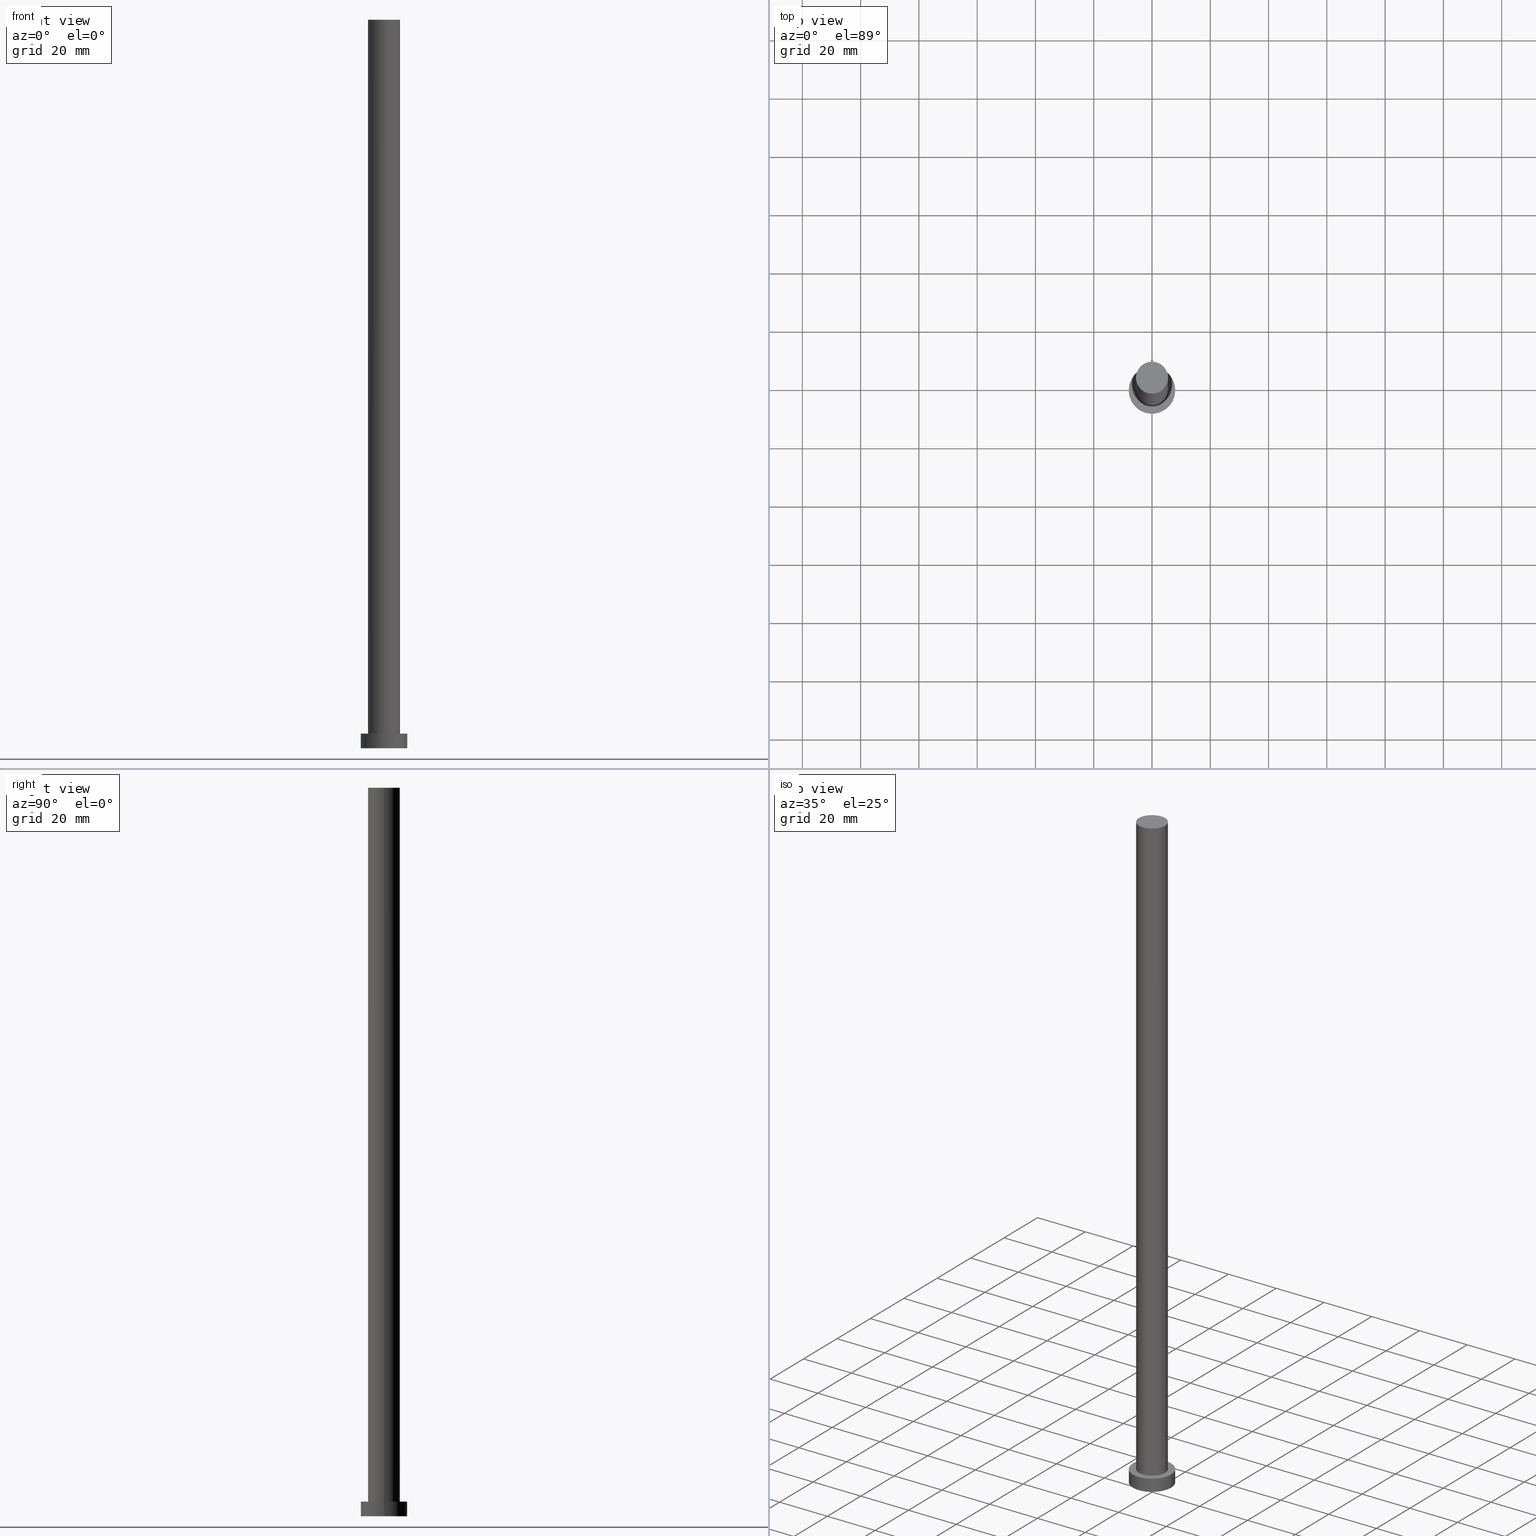
[diagram: canonical four-view strip — front | top / right | iso, engineering-drawing reading convention]
A machine part, canonical four-view strip (front | top / right | iso — engineering-drawing reading convention). The complete STEP part file that produces these views, byte-faithful:
ISO-10303-21;
HEADER;
FILE_DESCRIPTION (( 'STEP AP203' ),
    '1' );
FILE_NAME ('1687.STEP',
    '2023-02-12T10:57:11',
    ( '' ),
    ( '' ),
    'SwSTEP 2.0',
    'SolidWorks 2019',
    '' );
FILE_SCHEMA (( 'CONFIG_CONTROL_DESIGN' ));
ENDSEC;

DATA;
#1 = CARTESIAN_POINT ( 'NONE',  ( -5.500000000000000000, 0.000000000000000000, 250.0000000000000000 ) ) ;
#2 = EDGE_CURVE ( 'NONE', #222, #147, #193, .T. ) ;
#3 = ORIENTED_EDGE ( 'NONE', *, *, #88, .T. ) ;
#4 = MECHANICAL_CONTEXT ( 'NONE', #162, 'mechanical' ) ;
#5 = FACE_OUTER_BOUND ( 'NONE', #31, .T. ) ;
#6 = LOCAL_TIME ( 11, 57, 11.00000000000000000, #200 ) ;
#7 = CARTESIAN_POINT ( 'NONE',  ( -8.000000000000000000, 0.000000000000000000, 5.000000000000000000 ) ) ;
#8 = VECTOR ( 'NONE', #51, 1000.000000000000000 ) ;
#9 = CARTESIAN_POINT ( 'NONE',  ( 5.500000000000000000, 6.735557395310442023E-16, 250.0000000000000000 ) ) ;
#10 = DIRECTION ( 'NONE',  ( 0.000000000000000000, 0.000000000000000000, 1.000000000000000000 ) ) ;
#11 = AXIS2_PLACEMENT_3D ( 'NONE', #210, #114, #46 ) ;
#12 = PERSON_AND_ORGANIZATION_ROLE ( 'classification_officer' ) ;
#13 = DIRECTION ( 'NONE',  ( 1.000000000000000000, 0.000000000000000000, 0.000000000000000000 ) ) ;
#14 = ORIENTED_EDGE ( 'NONE', *, *, #88, .F. ) ;
#15 = SECURITY_CLASSIFICATION_LEVEL ( 'unclassified' ) ;
#16 = DIRECTION ( 'NONE',  ( 0.000000000000000000, 0.000000000000000000, 1.000000000000000000 ) ) ;
#17 = PERSON_AND_ORGANIZATION ( #141, #19 ) ;
#18 = DIRECTION ( 'NONE',  ( 0.000000000000000000, 0.000000000000000000, 1.000000000000000000 ) ) ;
#19 = ORGANIZATION ( 'NEUR�EN�', 'NEUR�EN�', '' ) ;
#20 = CC_DESIGN_PERSON_AND_ORGANIZATION_ASSIGNMENT ( #105, #203, ( #82 ) ) ;
#21 = VERTEX_POINT ( 'NONE', #45 ) ;
#22 = CARTESIAN_POINT ( 'NONE',  ( 0.000000000000000000, 0.000000000000000000, 0.000000000000000000 ) ) ;
#23 = CARTESIAN_POINT ( 'NONE',  ( -5.500000000000000000, 0.000000000000000000, 250.0000000000000000 ) ) ;
#24 = PLANE ( 'NONE',  #11 ) ;
#25 = CC_DESIGN_DATE_AND_TIME_ASSIGNMENT ( #84, #142, ( #174 ) ) ;
#26 = DIRECTION ( 'NONE',  ( 1.000000000000000000, 0.000000000000000000, 0.000000000000000000 ) ) ;
#27 = EDGE_CURVE ( 'NONE', #59, #147, #58, .T. ) ;
#28 =( NAMED_UNIT ( * ) SI_UNIT ( $, .STERADIAN. ) SOLID_ANGLE_UNIT ( ) );
#29 = AXIS2_PLACEMENT_3D ( 'NONE', #226, #177, #26 ) ;
#30 = CIRCLE ( 'NONE', #236, 8.000000000000000000 ) ;
#31 = EDGE_LOOP ( 'NONE', ( #170, #89, #192, #44 ) ) ;
#32 = PERSON_AND_ORGANIZATION ( #141, #19 ) ;
#33 = EDGE_CURVE ( 'NONE', #147, #59, #62, .T. ) ;
#34 = EDGE_LOOP ( 'NONE', ( #171, #3 ) ) ;
#35 = DIRECTION ( 'NONE',  ( -0.000000000000000000, -0.000000000000000000, -1.000000000000000000 ) ) ;
#36 = CALENDAR_DATE ( 2023, 12, 2 ) ;
#37 = DIRECTION ( 'NONE',  ( 1.000000000000000000, 0.000000000000000000, 0.000000000000000000 ) ) ;
#38 = EDGE_CURVE ( 'NONE', #222, #95, #94, .T. ) ;
#39 = DIRECTION ( 'NONE',  ( 0.000000000000000000, 0.000000000000000000, 1.000000000000000000 ) ) ;
#40 = LOCAL_TIME ( 11, 57, 11.00000000000000000, #56 ) ;
#41 = CIRCLE ( 'NONE', #70, 5.500000000000000000 ) ;
#42 = CARTESIAN_POINT ( 'NONE',  ( 0.000000000000000000, 0.000000000000000000, 5.000000000000000000 ) ) ;
#43 = DIRECTION ( 'NONE',  ( 1.000000000000000000, 0.000000000000000000, -0.000000000000000000 ) ) ;
#44 = ORIENTED_EDGE ( 'NONE', *, *, #146, .T. ) ;
#45 = CARTESIAN_POINT ( 'NONE',  ( 5.500000000000000000, 6.735557395310442023E-16, 5.000000000000000000 ) ) ;
#46 = DIRECTION ( 'NONE',  ( 1.000000000000000000, 0.000000000000000000, -0.000000000000000000 ) ) ;
#47 = DIRECTION ( 'NONE',  ( 0.000000000000000000, 0.000000000000000000, 1.000000000000000000 ) ) ;
#48 = PERSON_AND_ORGANIZATION ( #141, #19 ) ;
#49 = EDGE_CURVE ( 'NONE', #21, #233, #196, .T. ) ;
#50 = APPLICATION_PROTOCOL_DEFINITION ( 'international standard', 'config_control_design', 1994, #179 ) ;
#51 = DIRECTION ( 'NONE',  ( -0.000000000000000000, -0.000000000000000000, -1.000000000000000000 ) ) ;
#52 = EDGE_CURVE ( 'NONE', #75, #233, #67, .T. ) ;
#53 = LINE ( 'NONE', #9, #219 ) ;
#54 = ORIENTED_EDGE ( 'NONE', *, *, #103, .T. ) ;
#55 = ORIENTED_EDGE ( 'NONE', *, *, #124, .T. ) ;
#56 = COORDINATED_UNIVERSAL_TIME_OFFSET ( 1, 0, .AHEAD. ) ;
#57 = APPROVAL_PERSON_ORGANIZATION ( #17, #169, #186 ) ;
#58 = CIRCLE ( 'NONE', #197, 8.000000000000000000 ) ;
#59 = VERTEX_POINT ( 'NONE', #134 ) ;
#60 = PERSON_AND_ORGANIZATION ( #141, #19 ) ;
#61 = EDGE_LOOP ( 'NONE', ( #78, #102 ) ) ;
#62 = CIRCLE ( 'NONE', #93, 8.000000000000000000 ) ;
#63 = ORIENTED_EDGE ( 'NONE', *, *, #38, .F. ) ;
#64 = FACE_OUTER_BOUND ( 'NONE', #215, .T. ) ;
#65 = ADVANCED_FACE ( 'NONE', ( #5 ), #132, .T. ) ;
#66 = FACE_OUTER_BOUND ( 'NONE', #201, .T. ) ;
#67 = LINE ( 'NONE', #1, #150 ) ;
#68 = CC_DESIGN_APPROVAL ( #167, ( #82 ) ) ;
#69 = CARTESIAN_POINT ( 'NONE',  ( 0.000000000000000000, 0.000000000000000000, 250.0000000000000000 ) ) ;
#70 = AXIS2_PLACEMENT_3D ( 'NONE', #254, #157, #213 ) ;
#71 = APPLICATION_PROTOCOL_DEFINITION ( 'international standard', 'config_control_design', 1994, #162 ) ;
#72 = CC_DESIGN_PERSON_AND_ORGANIZATION_ASSIGNMENT ( #60, #12, ( #174 ) ) ;
#73 = LINE ( 'NONE', #228, #8 ) ;
#74 = DIRECTION ( 'NONE',  ( -0.000000000000000000, -0.000000000000000000, -1.000000000000000000 ) ) ;
#75 = VERTEX_POINT ( 'NONE', #23 ) ;
#76 = LOCAL_TIME ( 11, 57, 11.00000000000000000, #199 ) ;
#77 = CC_DESIGN_PERSON_AND_ORGANIZATION_ASSIGNMENT ( #122, #161, ( #211 ) ) ;
#78 = ORIENTED_EDGE ( 'NONE', *, *, #33, .F. ) ;
#79 = CIRCLE ( 'NONE', #191, 5.500000000000000000 ) ;
#80 = EDGE_LOOP ( 'NONE', ( #249, #125 ) ) ;
#81 = VERTEX_POINT ( 'NONE', #251 ) ;
#82 = PRODUCT_DEFINITION ( 'NEZN�M�', '', #211, #235 ) ;
#83 = ORIENTED_EDGE ( 'NONE', *, *, #103, .F. ) ;
#84 = DATE_AND_TIME ( #99, #40 ) ;
#85 = AXIS2_PLACEMENT_3D ( 'NONE', #234, #165, #224 ) ;
#86 = ADVANCED_FACE ( 'NONE', ( #92 ), #240, .T. ) ;
#87 = CARTESIAN_POINT ( 'NONE',  ( 0.000000000000000000, 0.000000000000000000, 0.000000000000000000 ) ) ;
#88 = EDGE_CURVE ( 'NONE', #95, #222, #30, .T. ) ;
#89 = ORIENTED_EDGE ( 'NONE', *, *, #130, .F. ) ;
#90 = COORDINATED_UNIVERSAL_TIME_OFFSET ( 1, 0, .AHEAD. ) ;
#91 = CC_DESIGN_APPROVAL ( #169, ( #174 ) ) ;
#92 = FACE_OUTER_BOUND ( 'NONE', #160, .T. ) ;
#93 = AXIS2_PLACEMENT_3D ( 'NONE', #87, #16, #104 ) ;
#94 = CIRCLE ( 'NONE', #253, 8.000000000000000000 ) ;
#95 = VERTEX_POINT ( 'NONE', #126 ) ;
#96 = CALENDAR_DATE ( 2023, 12, 2 ) ;
#97 = CYLINDRICAL_SURFACE ( 'NONE', #230, 8.000000000000000000 ) ;
#98 = ORIENTED_EDGE ( 'NONE', *, *, #52, .F. ) ;
#99 = CALENDAR_DATE ( 2023, 12, 2 ) ;
#100 = CARTESIAN_POINT ( 'NONE',  ( 0.000000000000000000, 0.000000000000000000, 250.0000000000000000 ) ) ;
#101 = DATE_TIME_ROLE ( 'creation_date' ) ;
#102 = ORIENTED_EDGE ( 'NONE', *, *, #27, .F. ) ;
#103 = EDGE_CURVE ( 'NONE', #81, #75, #231, .T. ) ;
#104 = DIRECTION ( 'NONE',  ( 1.000000000000000000, 0.000000000000000000, 0.000000000000000000 ) ) ;
#105 = PERSON_AND_ORGANIZATION ( #141, #19 ) ;
#106 = FACE_OUTER_BOUND ( 'NONE', #195, .T. ) ;
#107 = APPROVAL_PERSON_ORGANIZATION ( #156, #144, #212 ) ;
#108 = DIRECTION ( 'NONE',  ( -0.000000000000000000, -0.000000000000000000, -1.000000000000000000 ) ) ;
#109 = DIRECTION ( 'NONE',  ( 0.000000000000000000, 0.000000000000000000, 1.000000000000000000 ) ) ;
#110 = ADVANCED_FACE ( 'NONE', ( #198 ), #112, .F. ) ;
#111 = DIRECTION ( 'NONE',  ( 0.000000000000000000, 0.000000000000000000, 1.000000000000000000 ) ) ;
#112 = PLANE ( 'NONE',  #149 ) ;
#113 =( GEOMETRIC_REPRESENTATION_CONTEXT ( 3 ) GLOBAL_UNCERTAINTY_ASSIGNED_CONTEXT ( ( #217 ) ) GLOBAL_UNIT_ASSIGNED_CONTEXT ( ( #181, #245, #28 ) ) REPRESENTATION_CONTEXT ( 'NONE', 'WORKASPACE' ) );
#114 = DIRECTION ( 'NONE',  ( 0.000000000000000000, 0.000000000000000000, 1.000000000000000000 ) ) ;
#115 = ADVANCED_BREP_SHAPE_REPRESENTATION ( '1687', ( #135, #29 ), #113 ) ;
#116 = AXIS2_PLACEMENT_3D ( 'NONE', #42, #221, #168 ) ;
#117 = APPROVAL_DATE_TIME ( #250, #167 ) ;
#118 = APPROVAL_STATUS ( 'not_yet_approved' ) ;
#119 = PERSON_AND_ORGANIZATION_ROLE ( 'creator' ) ;
#120 = CARTESIAN_POINT ( 'NONE',  ( 0.000000000000000000, 0.000000000000000000, 250.0000000000000000 ) ) ;
#121 = ORIENTED_EDGE ( 'NONE', *, *, #27, .T. ) ;
#122 = PERSON_AND_ORGANIZATION ( #141, #19 ) ;
#123 = PRODUCT ( '1687', '1687', '', ( #4 ) ) ;
#124 = EDGE_CURVE ( 'NONE', #95, #59, #73, .T. ) ;
#125 = ORIENTED_EDGE ( 'NONE', *, *, #49, .F. ) ;
#126 = CARTESIAN_POINT ( 'NONE',  ( 8.000000000000000000, 9.797174393178825657E-16, 5.000000000000000000 ) ) ;
#127 = CARTESIAN_POINT ( 'NONE',  ( 0.000000000000000000, 0.000000000000000000, 5.000000000000000000 ) ) ;
#128 = AXIS2_PLACEMENT_3D ( 'NONE', #176, #18, #13 ) ;
#129 = ORIENTED_EDGE ( 'NONE', *, *, #130, .T. ) ;
#130 = EDGE_CURVE ( 'NONE', #75, #81, #79, .T. ) ;
#131 = AXIS2_PLACEMENT_3D ( 'NONE', #69, #143, #218 ) ;
#132 = CYLINDRICAL_SURFACE ( 'NONE', #205, 5.500000000000000000 ) ;
#133 = CARTESIAN_POINT ( 'NONE',  ( -5.500000000000000000, 0.000000000000000000, 5.000000000000000000 ) ) ;
#134 = CARTESIAN_POINT ( 'NONE',  ( 8.000000000000000000, 9.797174393178825657E-16, 0.000000000000000000 ) ) ;
#135 = MANIFOLD_SOLID_BREP ( 'P�idat vysunut�m3', #204 ) ;
#136 = ADVANCED_FACE ( 'NONE', ( #106 ), #97, .T. ) ;
#137 = LOCAL_TIME ( 11, 57, 11.00000000000000000, #182 ) ;
#138 = LOCAL_TIME ( 11, 57, 11.00000000000000000, #90 ) ;
#139 = DATE_AND_TIME ( #96, #6 ) ;
#140 = APPROVAL_DATE_TIME ( #252, #169 ) ;
#141 = PERSON ( 'NEUR�EN�', 'NEUR�EN�', 'NEUR�EN�', ('NEUR�EN�'), ('NEUR�EN�'), ('NEUR�EN�') ) ;
#142 = DATE_TIME_ROLE ( 'classification_date' ) ;
#143 = DIRECTION ( 'NONE',  ( -0.000000000000000000, -0.000000000000000000, -1.000000000000000000 ) ) ;
#144 = APPROVAL ( #190, 'NEUR�EN�' ) ;
#145 = ORIENTED_EDGE ( 'NONE', *, *, #49, .T. ) ;
#146 = EDGE_CURVE ( 'NONE', #233, #21, #41, .T. ) ;
#147 = VERTEX_POINT ( 'NONE', #238 ) ;
#148 = DIRECTION ( 'NONE',  ( -0.000000000000000000, -0.000000000000000000, -1.000000000000000000 ) ) ;
#149 = AXIS2_PLACEMENT_3D ( 'NONE', #183, #10, #246 ) ;
#150 = VECTOR ( 'NONE', #148, 1000.000000000000000 ) ;
#151 = DIRECTION ( 'NONE',  ( -0.000000000000000000, -0.000000000000000000, -1.000000000000000000 ) ) ;
#152 = ORIENTED_EDGE ( 'NONE', *, *, #247, .T. ) ;
#153 = APPROVAL_STATUS ( 'not_yet_approved' ) ;
#154 = PLANE ( 'NONE',  #159 ) ;
#155 = ORIENTED_EDGE ( 'NONE', *, *, #124, .F. ) ;
#156 = PERSON_AND_ORGANIZATION ( #141, #19 ) ;
#157 = DIRECTION ( 'NONE',  ( 0.000000000000000000, 0.000000000000000000, 1.000000000000000000 ) ) ;
#158 = VECTOR ( 'NONE', #151, 1000.000000000000000 ) ;
#159 = AXIS2_PLACEMENT_3D ( 'NONE', #100, #187, #43 ) ;
#160 = EDGE_LOOP ( 'NONE', ( #83, #152, #145, #98 ) ) ;
#161 = PERSON_AND_ORGANIZATION_ROLE ( 'design_supplier' ) ;
#162 = APPLICATION_CONTEXT ( 'configuration controlled 3d designs of mechanical parts and assemblies' ) ;
#163 = ADVANCED_FACE ( 'NONE', ( #66 ), #154, .T. ) ;
#164 = DIRECTION ( 'NONE',  ( 1.000000000000000000, 0.000000000000000000, 0.000000000000000000 ) ) ;
#165 = DIRECTION ( 'NONE',  ( 0.000000000000000000, 0.000000000000000000, 1.000000000000000000 ) ) ;
#166 = CC_DESIGN_APPROVAL ( #144, ( #211 ) ) ;
#167 = APPROVAL ( #153, 'NEUR�EN�' ) ;
#168 = DIRECTION ( 'NONE',  ( -1.000000000000000000, 0.000000000000000000, 0.000000000000000000 ) ) ;
#169 = APPROVAL ( #118, 'NEUR�EN�' ) ;
#170 = ORIENTED_EDGE ( 'NONE', *, *, #247, .F. ) ;
#171 = ORIENTED_EDGE ( 'NONE', *, *, #38, .T. ) ;
#172 = CARTESIAN_POINT ( 'NONE',  ( 0.000000000000000000, 0.000000000000000000, 5.000000000000000000 ) ) ;
#173 = DIRECTION ( 'NONE',  ( -1.000000000000000000, 0.000000000000000000, 0.000000000000000000 ) ) ;
#174 = SECURITY_CLASSIFICATION ( '', '', #15 ) ;
#175 = CALENDAR_DATE ( 2023, 12, 2 ) ;
#176 = CARTESIAN_POINT ( 'NONE',  ( 0.000000000000000000, 0.000000000000000000, 250.0000000000000000 ) ) ;
#177 = DIRECTION ( 'NONE',  ( 0.000000000000000000, 0.000000000000000000, 1.000000000000000000 ) ) ;
#178 = FACE_OUTER_BOUND ( 'NONE', #34, .T. ) ;
#179 = APPLICATION_CONTEXT ( 'configuration controlled 3d designs of mechanical parts and assemblies' ) ;
#180 = ADVANCED_FACE ( 'NONE', ( #64 ), #220, .T. ) ;
#181 =( LENGTH_UNIT ( ) NAMED_UNIT ( * ) SI_UNIT ( .MILLI., .METRE. ) );
#182 = COORDINATED_UNIVERSAL_TIME_OFFSET ( 1, 0, .AHEAD. ) ;
#183 = CARTESIAN_POINT ( 'NONE',  ( 0.000000000000000000, 0.000000000000000000, 0.000000000000000000 ) ) ;
#184 = ORIENTED_EDGE ( 'NONE', *, *, #2, .F. ) ;
#185 = CALENDAR_DATE ( 2023, 12, 2 ) ;
#186 = APPROVAL_ROLE ( '' ) ;
#187 = DIRECTION ( 'NONE',  ( 0.000000000000000000, 0.000000000000000000, 1.000000000000000000 ) ) ;
#188 = PRODUCT_DEFINITION_SHAPE ( 'NONE', 'NONE',  #82 ) ;
#189 = ORIENTED_EDGE ( 'NONE', *, *, #33, .T. ) ;
#190 = APPROVAL_STATUS ( 'not_yet_approved' ) ;
#191 = AXIS2_PLACEMENT_3D ( 'NONE', #120, #39, #164 ) ;
#192 = ORIENTED_EDGE ( 'NONE', *, *, #52, .T. ) ;
#193 = LINE ( 'NONE', #206, #158 ) ;
#194 = APPROVAL_ROLE ( '' ) ;
#195 = EDGE_LOOP ( 'NONE', ( #14, #55, #121, #184 ) ) ;
#196 = CIRCLE ( 'NONE', #85, 5.500000000000000000 ) ;
#197 = AXIS2_PLACEMENT_3D ( 'NONE', #22, #111, #202 ) ;
#198 = FACE_OUTER_BOUND ( 'NONE', #61, .T. ) ;
#199 = COORDINATED_UNIVERSAL_TIME_OFFSET ( 1, 0, .AHEAD. ) ;
#200 = COORDINATED_UNIVERSAL_TIME_OFFSET ( 1, 0, .AHEAD. ) ;
#201 = EDGE_LOOP ( 'NONE', ( #129, #54 ) ) ;
#202 = DIRECTION ( 'NONE',  ( 1.000000000000000000, 0.000000000000000000, 0.000000000000000000 ) ) ;
#203 = PERSON_AND_ORGANIZATION_ROLE ( 'creator' ) ;
#204 = CLOSED_SHELL ( 'NONE', ( #86, #136, #180, #227, #110, #65, #163 ) ) ;
#205 = AXIS2_PLACEMENT_3D ( 'NONE', #207, #35, #173 ) ;
#206 = CARTESIAN_POINT ( 'NONE',  ( -8.000000000000000000, 0.000000000000000000, 5.000000000000000000 ) ) ;
#207 = CARTESIAN_POINT ( 'NONE',  ( 0.000000000000000000, 0.000000000000000000, 250.0000000000000000 ) ) ;
#208 = PERSON_AND_ORGANIZATION_ROLE ( 'design_owner' ) ;
#209 = CC_DESIGN_PERSON_AND_ORGANIZATION_ASSIGNMENT ( #48, #208, ( #123 ) ) ;
#210 = CARTESIAN_POINT ( 'NONE',  ( 0.000000000000000000, 0.000000000000000000, 5.000000000000000000 ) ) ;
#211 = PRODUCT_DEFINITION_FORMATION_WITH_SPECIFIED_SOURCE ( 'LIBOVOLN�', '', #123, .NOT_KNOWN. ) ;
#212 = APPROVAL_ROLE ( '' ) ;
#213 = DIRECTION ( 'NONE',  ( 1.000000000000000000, 0.000000000000000000, 0.000000000000000000 ) ) ;
#214 = DATE_AND_TIME ( #185, #137 ) ;
#215 = EDGE_LOOP ( 'NONE', ( #155, #63, #244, #189 ) ) ;
#216 = SHAPE_DEFINITION_REPRESENTATION ( #188, #115 ) ;
#217 = UNCERTAINTY_MEASURE_WITH_UNIT (LENGTH_MEASURE( 1.000000000000000082E-05 ), #181, 'distance_accuracy_value', 'NONE');
#218 = DIRECTION ( 'NONE',  ( -1.000000000000000000, 0.000000000000000000, 0.000000000000000000 ) ) ;
#219 = VECTOR ( 'NONE', #74, 1000.000000000000000 ) ;
#220 = CYLINDRICAL_SURFACE ( 'NONE', #116, 8.000000000000000000 ) ;
#221 = DIRECTION ( 'NONE',  ( -0.000000000000000000, -0.000000000000000000, -1.000000000000000000 ) ) ;
#222 = VERTEX_POINT ( 'NONE', #7 ) ;
#223 = CC_DESIGN_SECURITY_CLASSIFICATION ( #174, ( #211 ) ) ;
#224 = DIRECTION ( 'NONE',  ( 1.000000000000000000, 0.000000000000000000, 0.000000000000000000 ) ) ;
#225 = PERSON_AND_ORGANIZATION ( #141, #19 ) ;
#226 = CARTESIAN_POINT ( 'NONE',  ( 0.000000000000000000, 0.000000000000000000, 0.000000000000000000 ) ) ;
#227 = ADVANCED_FACE ( 'NONE', ( #241, #178 ), #24, .T. ) ;
#228 = CARTESIAN_POINT ( 'NONE',  ( 8.000000000000000000, 9.797174393178825657E-16, 5.000000000000000000 ) ) ;
#229 = CC_DESIGN_DATE_AND_TIME_ASSIGNMENT ( #139, #101, ( #82 ) ) ;
#230 = AXIS2_PLACEMENT_3D ( 'NONE', #127, #108, #232 ) ;
#231 = CIRCLE ( 'NONE', #128, 5.500000000000000000 ) ;
#232 = DIRECTION ( 'NONE',  ( -1.000000000000000000, 0.000000000000000000, 0.000000000000000000 ) ) ;
#233 = VERTEX_POINT ( 'NONE', #133 ) ;
#234 = CARTESIAN_POINT ( 'NONE',  ( 0.000000000000000000, 0.000000000000000000, 5.000000000000000000 ) ) ;
#235 = DESIGN_CONTEXT ( 'detailed design', #179, 'design' ) ;
#236 = AXIS2_PLACEMENT_3D ( 'NONE', #243, #47, #37 ) ;
#237 = PRODUCT_RELATED_PRODUCT_CATEGORY ( 'detail', '', ( #123 ) ) ;
#238 = CARTESIAN_POINT ( 'NONE',  ( -8.000000000000000000, 0.000000000000000000, 0.000000000000000000 ) ) ;
#239 = DIRECTION ( 'NONE',  ( 1.000000000000000000, 0.000000000000000000, 0.000000000000000000 ) ) ;
#240 = CYLINDRICAL_SURFACE ( 'NONE', #131, 5.500000000000000000 ) ;
#241 = FACE_BOUND ( 'NONE', #80, .T. ) ;
#242 = APPROVAL_PERSON_ORGANIZATION ( #225, #167, #194 ) ;
#243 = CARTESIAN_POINT ( 'NONE',  ( 0.000000000000000000, 0.000000000000000000, 5.000000000000000000 ) ) ;
#244 = ORIENTED_EDGE ( 'NONE', *, *, #2, .T. ) ;
#245 =( NAMED_UNIT ( * ) PLANE_ANGLE_UNIT ( ) SI_UNIT ( $, .RADIAN. ) );
#246 = DIRECTION ( 'NONE',  ( 1.000000000000000000, 0.000000000000000000, -0.000000000000000000 ) ) ;
#247 = EDGE_CURVE ( 'NONE', #81, #21, #53, .T. ) ;
#248 = APPROVAL_DATE_TIME ( #214, #144 ) ;
#249 = ORIENTED_EDGE ( 'NONE', *, *, #146, .F. ) ;
#250 = DATE_AND_TIME ( #175, #138 ) ;
#251 = CARTESIAN_POINT ( 'NONE',  ( 5.500000000000000000, 6.735557395310442023E-16, 250.0000000000000000 ) ) ;
#252 = DATE_AND_TIME ( #36, #76 ) ;
#253 = AXIS2_PLACEMENT_3D ( 'NONE', #172, #109, #239 ) ;
#254 = CARTESIAN_POINT ( 'NONE',  ( 0.000000000000000000, 0.000000000000000000, 5.000000000000000000 ) ) ;
#255 = CC_DESIGN_PERSON_AND_ORGANIZATION_ASSIGNMENT ( #32, #119, ( #211 ) ) ;
ENDSEC;
END-ISO-10303-21;
